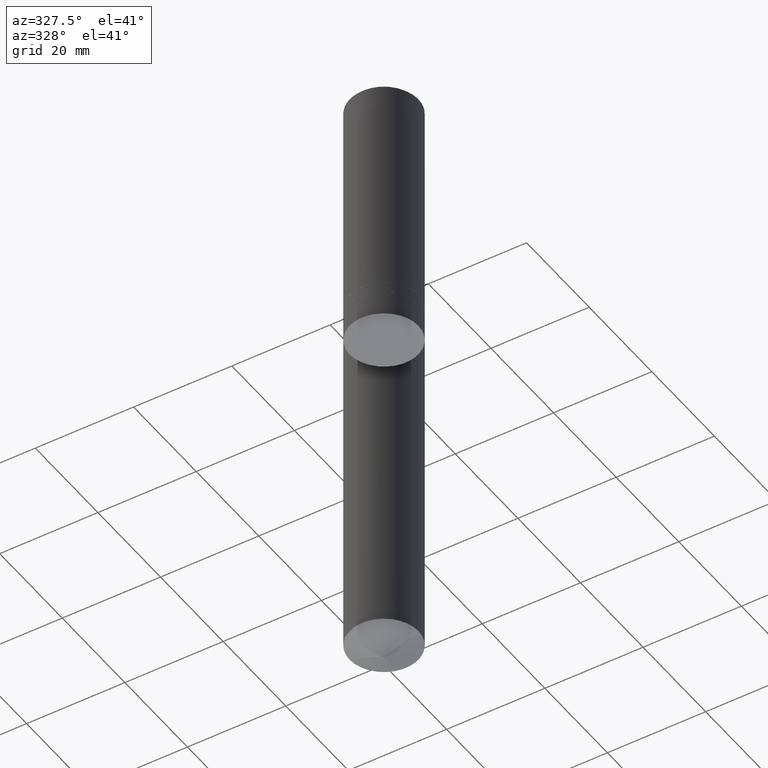
[diagram: clean part render]
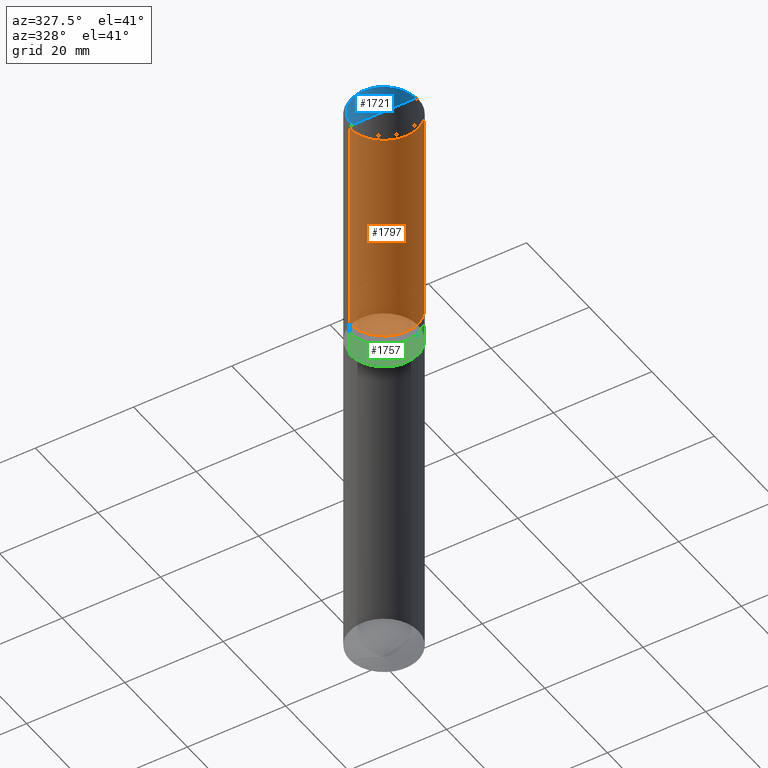
[diagram: same view with three faces highlighted in distinct colors, each labeled with its STEP entity id]
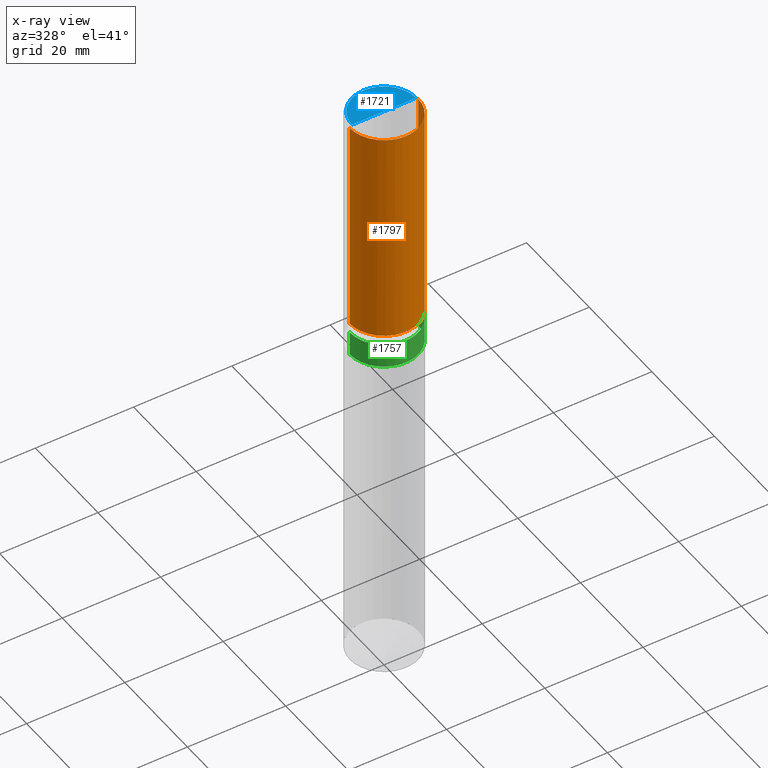
[diagram: x-ray of the same camera — body ghosted, the three highlighted faces saturated]
A machine part, auxiliary view with three faces highlighted in distinct colors.
The next image is the same camera in x-ray (body ghosted, the three faces saturated) — at least one of them is partly hidden behind the body in this view.
Their STEP definitions:

[orange] entity #1797 — the highlighted face is a freeform B-spline surface patch.
#1469=CARTESIAN_POINT('',(7.0,0.0,0.0));
#1473=CARTESIAN_POINT('',(-7.0,0.0,0.0));
#1474=CARTESIAN_POINT('',(7.0,0.0,44.5));
#1478=CARTESIAN_POINT('',(-7.0,0.0,44.5));
#1488=CARTESIAN_POINT('',(-7.0,-7.0,0.0));
#1489=CARTESIAN_POINT('',(0.0,-7.0,0.0));
#1490=CARTESIAN_POINT('',(7.0,-7.0,0.0));
#1491=CARTESIAN_POINT('',(-7.0,-7.0,44.5));
#1492=CARTESIAN_POINT('',(0.0,-7.0,44.5));
#1493=CARTESIAN_POINT('',(7.0,-7.0,44.5));
#1778=(
BOUNDED_SURFACE()
B_SPLINE_SURFACE(1,2,(
(#1473,#1488,#1489,#1490,#1469),
(#1478,#1491,#1492,#1493,#1474)
), .UNSPECIFIED.,.F.,.F.,.F.)
B_SPLINE_SURFACE_WITH_KNOTS((2,2),(3,2,3),(
0.0,1.0),(
0.0,0.5,1.0), .UNSPECIFIED.)
GEOMETRIC_REPRESENTATION_ITEM()
RATIONAL_B_SPLINE_SURFACE(((1.0,0.707106781187,1.0,0.707106781187,1.0),
(1.0,0.707106781187,1.0,0.707106781187,1.0)
))
REPRESENTATION_ITEM('')
SURFACE()
);
#1779=(
BOUNDED_CURVE()
B_SPLINE_CURVE(2,(#1469,#1490,#1489,#1488,#1473),.UNSPECIFIED.,.F.,.F.)
B_SPLINE_CURVE_WITH_KNOTS((3,2,3),
(0.0,0.5,1.0),.UNSPECIFIED.)
CURVE()
GEOMETRIC_REPRESENTATION_ITEM()
RATIONAL_B_SPLINE_CURVE((1.0,0.707106781187,1.0,0.707106781187,1.0))
REPRESENTATION_ITEM('')
);
#1780=(
BOUNDED_CURVE()
B_SPLINE_CURVE(1,(#1473,#1478),.UNSPECIFIED.,.F.,.F.)
B_SPLINE_CURVE_WITH_KNOTS((2,2),
(0.0,1.0),.UNSPECIFIED.)
CURVE()
GEOMETRIC_REPRESENTATION_ITEM()
RATIONAL_B_SPLINE_CURVE((1.0,1.0))
REPRESENTATION_ITEM('')
);
#1781=(
BOUNDED_CURVE()
B_SPLINE_CURVE(2,(#1478,#1491,#1492,#1493,#1474),.UNSPECIFIED.,.F.,.F.)
B_SPLINE_CURVE_WITH_KNOTS((3,2,3),
(0.0,0.5,1.0),.UNSPECIFIED.)
CURVE()
GEOMETRIC_REPRESENTATION_ITEM()
RATIONAL_B_SPLINE_CURVE((1.0,0.707106781187,1.0,0.707106781187,1.0))
REPRESENTATION_ITEM('')
);
#1782=(
BOUNDED_CURVE()
B_SPLINE_CURVE(1,(#1474,#1469),.UNSPECIFIED.,.F.,.F.)
B_SPLINE_CURVE_WITH_KNOTS((2,2),
(0.0,1.0),.UNSPECIFIED.)
CURVE()
GEOMETRIC_REPRESENTATION_ITEM()
RATIONAL_B_SPLINE_CURVE((1.0,1.0))
REPRESENTATION_ITEM('')
);
#1783=VERTEX_POINT('',#1469);
#1784=VERTEX_POINT('',#1473);
#1785=VERTEX_POINT('',#1474);
#1786=VERTEX_POINT('',#1478);
#1787=EDGE_CURVE('',#1783,#1784,#1779,.T.);
#1788=EDGE_CURVE('',#1784,#1786,#1780,.T.);
#1789=EDGE_CURVE('',#1786,#1785,#1781,.T.);
#1790=EDGE_CURVE('',#1785,#1783,#1782,.T.);
#1791=ORIENTED_EDGE('',*,*,#1787,.T.);
#1792=ORIENTED_EDGE('',*,*,#1788,.T.);
#1793=ORIENTED_EDGE('',*,*,#1789,.T.);
#1794=ORIENTED_EDGE('',*,*,#1790,.T.);
#1795=EDGE_LOOP('',(#1791,#1792,#1793,#1794));
#1796=FACE_OUTER_BOUND('',#1795,.T.);
#1797=ADVANCED_FACE('',(#1796),#1778,.T.);

[blue] entity #1721 — the highlighted face is a freeform B-spline surface patch.
#1479=CARTESIAN_POINT('',(6.5,0.0,45.0));
#1480=CARTESIAN_POINT('',(6.5,6.5,45.0));
#1481=CARTESIAN_POINT('',(0.0,6.5,45.0));
#1482=CARTESIAN_POINT('',(-6.5,6.5,45.0));
#1483=CARTESIAN_POINT('',(-6.5,0.0,45.0));
#1484=CARTESIAN_POINT('',(0.0,0.0,45.0));
#1706=(
BOUNDED_SURFACE()
B_SPLINE_SURFACE(1,2,(
(#1479,#1480,#1481,#1482,#1483),
(#1484,#1484,#1484,#1484,#1484)
), .UNSPECIFIED.,.F.,.F.,.F.)
B_SPLINE_SURFACE_WITH_KNOTS((2,2),(3,2,3),(
0.0,1.0),(
0.0,0.5,1.0), .UNSPECIFIED.)
GEOMETRIC_REPRESENTATION_ITEM()
RATIONAL_B_SPLINE_SURFACE(((1.0,0.707106781187,1.0,0.707106781187,1.0),
(1.0,0.707106781187,1.0,0.707106781187,1.0)
))
REPRESENTATION_ITEM('')
SURFACE()
);
#1707=(
BOUNDED_CURVE()
B_SPLINE_CURVE(2,(#1483,#1482,#1481,#1480,#1479),.UNSPECIFIED.,.F.,.F.)
B_SPLINE_CURVE_WITH_KNOTS((3,2,3),
(0.0,0.5,1.0),.UNSPECIFIED.)
CURVE()
GEOMETRIC_REPRESENTATION_ITEM()
RATIONAL_B_SPLINE_CURVE((1.0,0.707106781187,1.0,0.707106781187,1.0))
REPRESENTATION_ITEM('')
);
#1708=(
BOUNDED_CURVE()
B_SPLINE_CURVE(1,(#1479,#1484),.UNSPECIFIED.,.F.,.F.)
B_SPLINE_CURVE_WITH_KNOTS((2,2),
(0.0,1.0),.UNSPECIFIED.)
CURVE()
GEOMETRIC_REPRESENTATION_ITEM()
RATIONAL_B_SPLINE_CURVE((1.0,1.0))
REPRESENTATION_ITEM('')
);
#1709=(
BOUNDED_CURVE()
B_SPLINE_CURVE(1,(#1484,#1483),.UNSPECIFIED.,.F.,.F.)
B_SPLINE_CURVE_WITH_KNOTS((2,2),
(0.0,1.0),.UNSPECIFIED.)
CURVE()
GEOMETRIC_REPRESENTATION_ITEM()
RATIONAL_B_SPLINE_CURVE((1.0,1.0))
REPRESENTATION_ITEM('')
);
#1710=VERTEX_POINT('',#1479);
#1711=VERTEX_POINT('',#1483);
#1712=VERTEX_POINT('',#1484);
#1713=EDGE_CURVE('',#1711,#1710,#1707,.T.);
#1714=EDGE_CURVE('',#1710,#1712,#1708,.T.);
#1715=EDGE_CURVE('',#1712,#1711,#1709,.T.);
#1716=ORIENTED_EDGE('',*,*,#1713,.T.);
#1717=ORIENTED_EDGE('',*,*,#1714,.T.);
#1718=ORIENTED_EDGE('',*,*,#1715,.T.);
#1719=EDGE_LOOP('',(#1716,#1717,#1718));
#1720=FACE_OUTER_BOUND('',#1719,.T.);
#1721=ADVANCED_FACE('',(#1720),#1706,.T.);

[green] entity #1757 — the highlighted face is a freeform B-spline surface patch.
#1452=CARTESIAN_POINT('',(7.0,0.0,-7.0));
#1456=CARTESIAN_POINT('',(-7.0,0.0,-7.0));
#1461=CARTESIAN_POINT('',(-7.0,-7.0,-7.0));
#1462=CARTESIAN_POINT('',(0.0,-7.0,-7.0));
#1463=CARTESIAN_POINT('',(7.0,-7.0,-7.0));
#1464=CARTESIAN_POINT('',(7.0,0.0,-2.0));
#1468=CARTESIAN_POINT('',(-7.0,0.0,-2.0));
#1485=CARTESIAN_POINT('',(-7.0,-7.0,-2.0));
#1486=CARTESIAN_POINT('',(0.0,-7.0,-2.0));
#1487=CARTESIAN_POINT('',(7.0,-7.0,-2.0));
#1738=(
BOUNDED_SURFACE()
B_SPLINE_SURFACE(1,2,(
(#1456,#1461,#1462,#1463,#1452),
(#1468,#1485,#1486,#1487,#1464)
), .UNSPECIFIED.,.F.,.F.,.F.)
B_SPLINE_SURFACE_WITH_KNOTS((2,2),(3,2,3),(
0.0,1.0),(
0.0,0.5,1.0), .UNSPECIFIED.)
GEOMETRIC_REPRESENTATION_ITEM()
RATIONAL_B_SPLINE_SURFACE(((1.0,0.707106781187,1.0,0.707106781187,1.0),
(1.0,0.707106781187,1.0,0.707106781187,1.0)
))
REPRESENTATION_ITEM('')
SURFACE()
);
#1739=(
BOUNDED_CURVE()
B_SPLINE_CURVE(2,(#1452,#1463,#1462,#1461,#1456),.UNSPECIFIED.,.F.,.F.)
B_SPLINE_CURVE_WITH_KNOTS((3,2,3),
(0.0,0.5,1.0),.UNSPECIFIED.)
CURVE()
GEOMETRIC_REPRESENTATION_ITEM()
RATIONAL_B_SPLINE_CURVE((1.0,0.707106781187,1.0,0.707106781187,1.0))
REPRESENTATION_ITEM('')
);
#1740=(
BOUNDED_CURVE()
B_SPLINE_CURVE(1,(#1456,#1468),.UNSPECIFIED.,.F.,.F.)
B_SPLINE_CURVE_WITH_KNOTS((2,2),
(0.0,1.0),.UNSPECIFIED.)
CURVE()
GEOMETRIC_REPRESENTATION_ITEM()
RATIONAL_B_SPLINE_CURVE((1.0,1.0))
REPRESENTATION_ITEM('')
);
#1741=(
BOUNDED_CURVE()
B_SPLINE_CURVE(2,(#1468,#1485,#1486,#1487,#1464),.UNSPECIFIED.,.F.,.F.)
B_SPLINE_CURVE_WITH_KNOTS((3,2,3),
(0.0,0.5,1.0),.UNSPECIFIED.)
CURVE()
GEOMETRIC_REPRESENTATION_ITEM()
RATIONAL_B_SPLINE_CURVE((1.0,0.707106781187,1.0,0.707106781187,1.0))
REPRESENTATION_ITEM('')
);
#1742=(
BOUNDED_CURVE()
B_SPLINE_CURVE(1,(#1464,#1452),.UNSPECIFIED.,.F.,.F.)
B_SPLINE_CURVE_WITH_KNOTS((2,2),
(0.0,1.0),.UNSPECIFIED.)
CURVE()
GEOMETRIC_REPRESENTATION_ITEM()
RATIONAL_B_SPLINE_CURVE((1.0,1.0))
REPRESENTATION_ITEM('')
);
#1743=VERTEX_POINT('',#1452);
#1744=VERTEX_POINT('',#1456);
#1745=VERTEX_POINT('',#1464);
#1746=VERTEX_POINT('',#1468);
#1747=EDGE_CURVE('',#1743,#1744,#1739,.T.);
#1748=EDGE_CURVE('',#1744,#1746,#1740,.T.);
#1749=EDGE_CURVE('',#1746,#1745,#1741,.T.);
#1750=EDGE_CURVE('',#1745,#1743,#1742,.T.);
#1751=ORIENTED_EDGE('',*,*,#1747,.T.);
#1752=ORIENTED_EDGE('',*,*,#1748,.T.);
#1753=ORIENTED_EDGE('',*,*,#1749,.T.);
#1754=ORIENTED_EDGE('',*,*,#1750,.T.);
#1755=EDGE_LOOP('',(#1751,#1752,#1753,#1754));
#1756=FACE_OUTER_BOUND('',#1755,.T.);
#1757=ADVANCED_FACE('',(#1756),#1738,.T.);